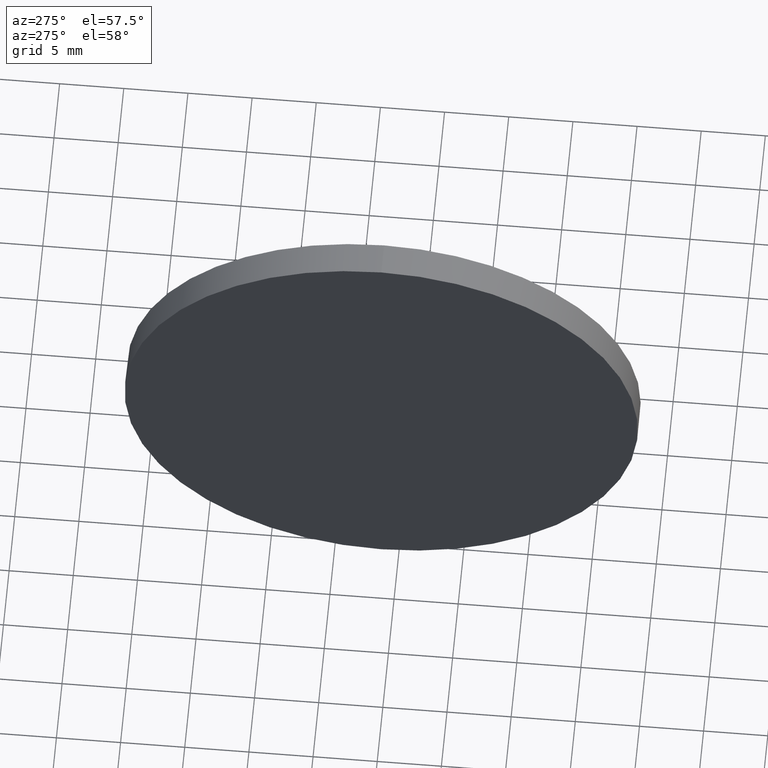
[diagram: clean part render]
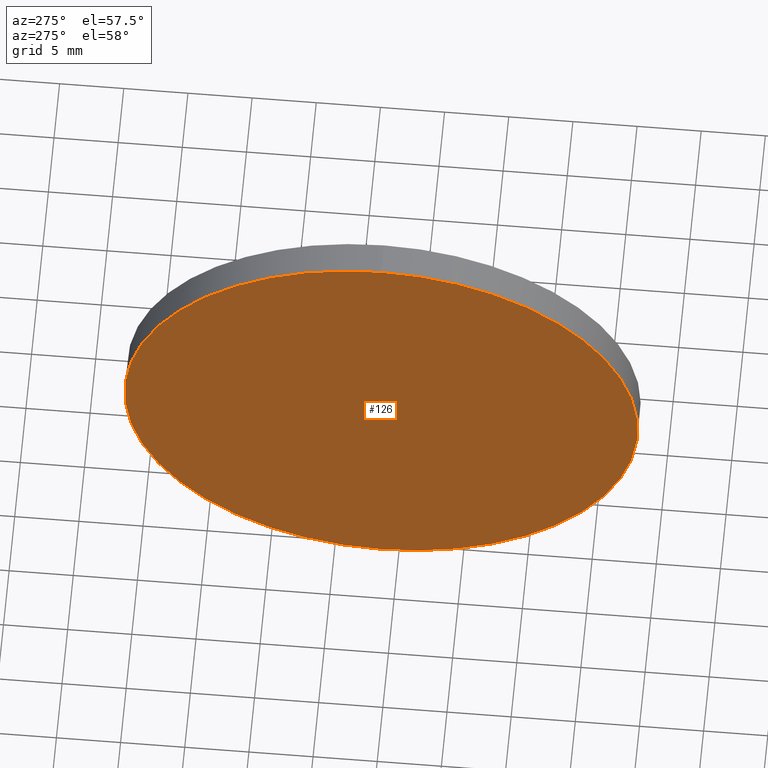
[diagram: same view with one face highlighted and labeled with its STEP entity id]
A machine part, auxiliary view. The second image highlights one B-rep face of the part: STEP entity #126.
In plain terms, the highlighted planar face has unit normal (1, 0, 0).
Its self-contained STEP definition (entity closure, byte-faithful):
#1 = DIRECTION ( 'NONE',  ( 0.0000000000000000000, 0.0000000000000000000, 1.000000000000000000 ) ) ;
#4 = DIRECTION ( 'NONE',  ( 0.0000000000000000000, 0.0000000000000000000, -1.000000000000000000 ) ) ;
#21 = ORIENTED_EDGE ( 'NONE', *, *, #44, .T. ) ;
#22 = DIRECTION ( 'NONE',  ( -1.000000000000000000, -0.0000000000000000000, -0.0000000000000000000 ) ) ;
#24 = VERTEX_POINT ( 'NONE', #118 ) ;
#32 = DIRECTION ( 'NONE',  ( 1.000000000000000000, 0.0000000000000000000, 0.0000000000000000000 ) ) ;
#34 = DIRECTION ( 'NONE',  ( 0.0000000000000000000, 0.0000000000000000000, 1.000000000000000000 ) ) ;
#37 = EDGE_LOOP ( 'NONE', ( #21, #181 ) ) ;
#44 = EDGE_CURVE ( 'NONE', #124, #24, #48, .T. ) ;
#48 = CIRCLE ( 'NONE', #141, 20.00000000000000400 ) ;
#58 = DIRECTION ( 'NONE',  ( -1.000000000000000000, -0.0000000000000000000, -0.0000000000000000000 ) ) ;
#68 = AXIS2_PLACEMENT_3D ( 'NONE', #175, #22, #34 ) ;
#78 = AXIS2_PLACEMENT_3D ( 'NONE', #176, #32, #4 ) ;
#104 = EDGE_CURVE ( 'NONE', #24, #124, #140, .T. ) ;
#106 = CARTESIAN_POINT ( 'NONE',  ( 648.9447609870927600, 6.345979496323138800, 20.00000000000000400 ) ) ;
#118 = CARTESIAN_POINT ( 'NONE',  ( 648.9447609870927600, 6.345979496323141500, -20.00000000000000400 ) ) ;
#124 = VERTEX_POINT ( 'NONE', #106 ) ;
#126 = ADVANCED_FACE ( 'NONE', ( #171 ), #134, .F. ) ;
#134 = PLANE ( 'NONE',  #78 ) ;
#140 = CIRCLE ( 'NONE', #68, 20.00000000000000400 ) ;
#141 = AXIS2_PLACEMENT_3D ( 'NONE', #150, #58, #1 ) ;
#150 = CARTESIAN_POINT ( 'NONE',  ( 648.9447609870927600, 6.345979496323138800, 0.0000000000000000000 ) ) ;
#171 = FACE_OUTER_BOUND ( 'NONE', #37, .T. ) ;
#175 = CARTESIAN_POINT ( 'NONE',  ( 648.9447609870927600, 6.345979496323138800, 0.0000000000000000000 ) ) ;
#176 = CARTESIAN_POINT ( 'NONE',  ( 648.9447609870927600, 6.345979496323138800, 0.0000000000000000000 ) ) ;
#181 = ORIENTED_EDGE ( 'NONE', *, *, #104, .T. ) ;